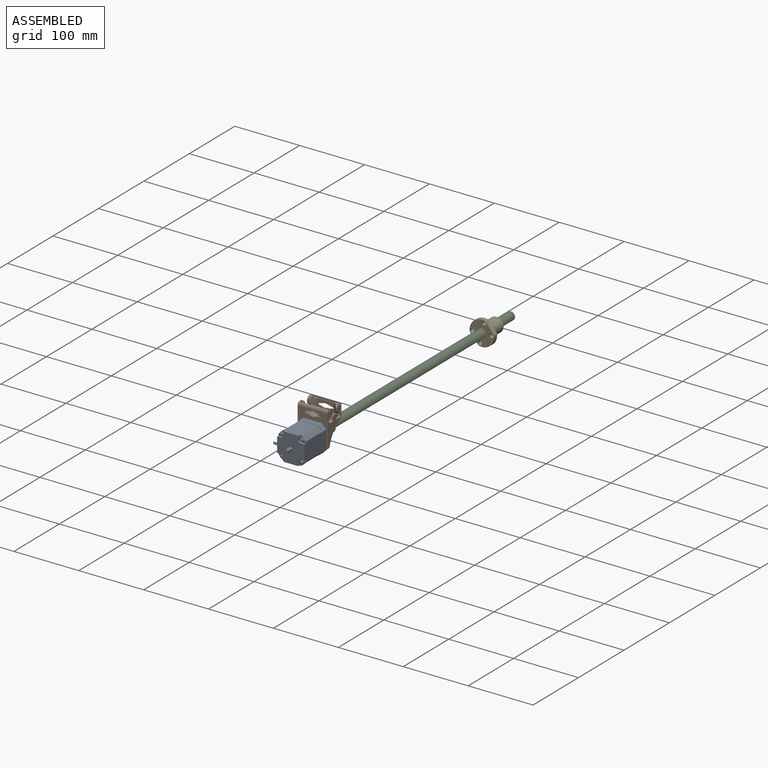
[diagram: assembled view]
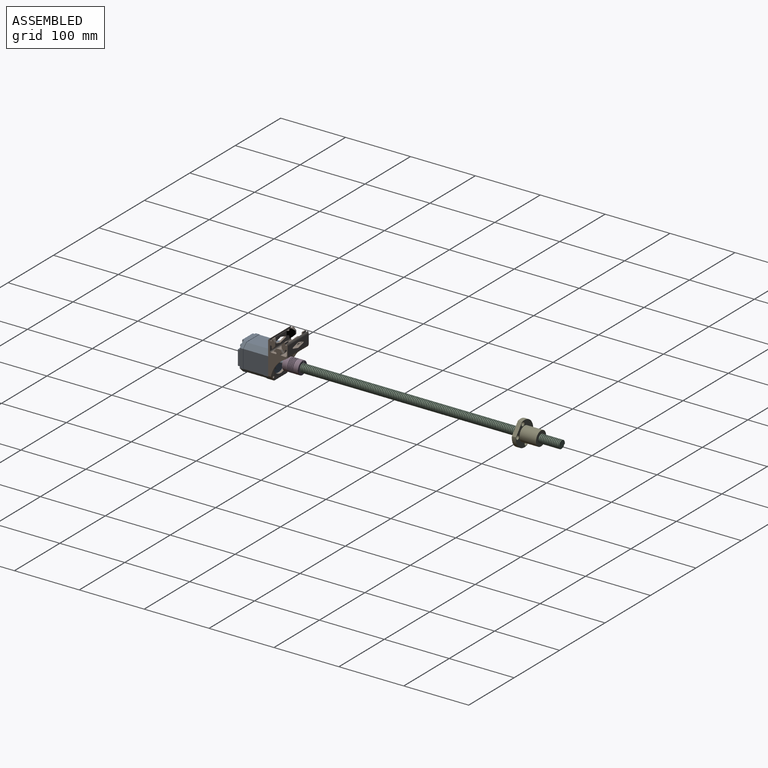
[diagram: assembled view, second angle]
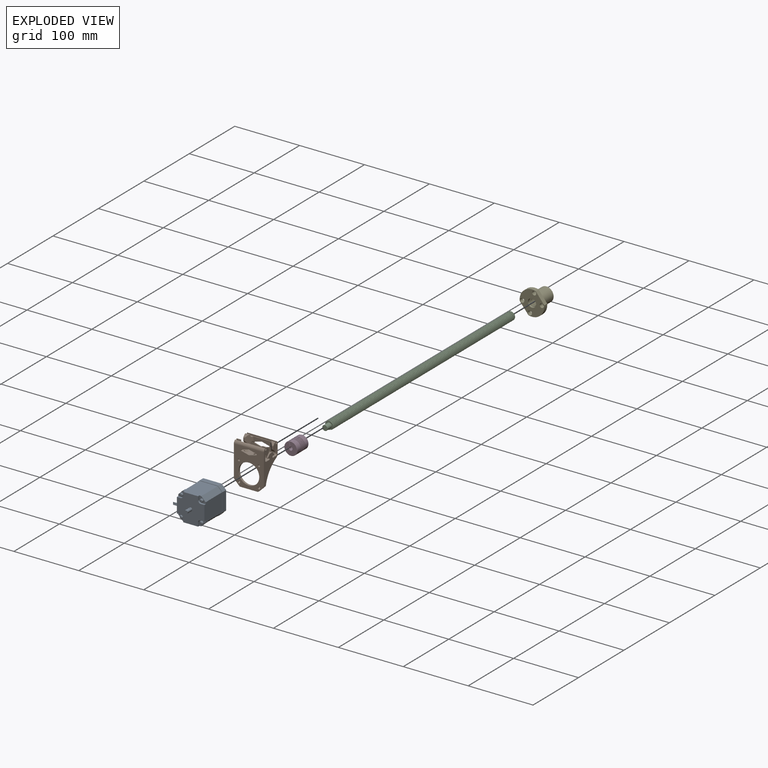
[diagram: exploded view]
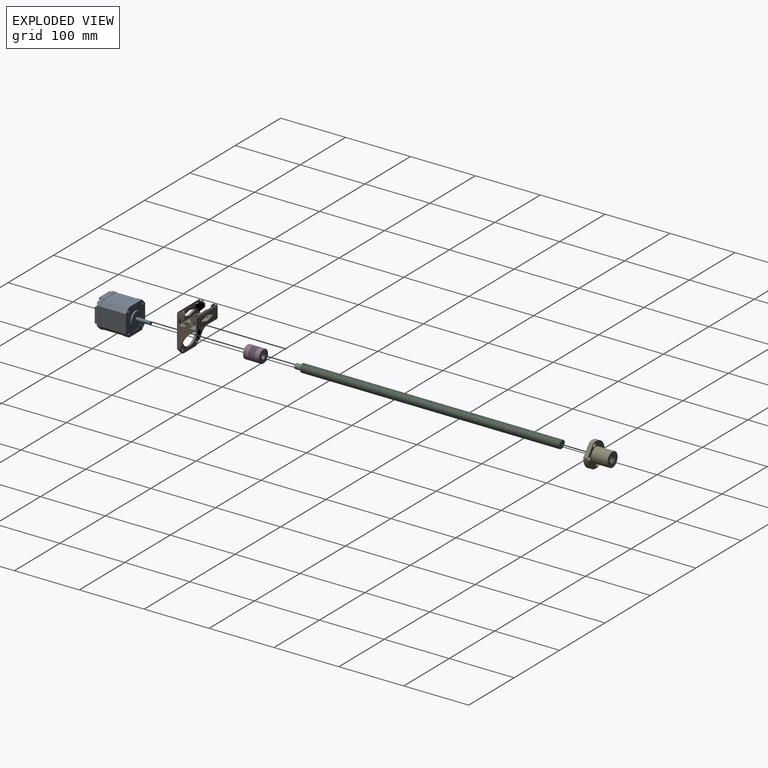
[diagram: exploded view, second angle]
ASSEMBLY  parts=5 mates=4
PART A: 93 faces, bbox 49.3x82x42.3 mm
  f0: plane 42.3x42.3mm, normal (0,1,0), area 858.8mm2, adj f1,f13,f15,f17,f19,f21,f32,f34
  f1: plane 8.25x7mm, normal (0.71,0,0.71), area 81.7mm2, adj f0,f3,f21,f34
  f2: plane 7x7mm, normal (0.71,0,0.71), area 52mm2, adj f12,f22,f23,f35
  f3: plane 42.3x42.3mm, normal (0,-1,0), area 75.6mm2, adj f1,f4,f5,f6,f7,f8,f9,f10
  f4: plane 31.5x6.71mm, normal (0.71,0,0.71), area 298.8mm2, adj f3,f5,f11,f12
  f5: plane 31.5x27.89mm, normal (1,0,0), area 878.4mm2, adj f3,f4,f6,f12
  f6: plane 31.5x6.71mm, normal (0.71,0,-0.71), area 298.8mm2, adj f3,f5,f7,f12
  f7: plane 31.5x27.89mm, normal (0,0,-1), area 878.4mm2, adj f3,f6,f8,f12
  f8: plane 31.5x6.71mm, normal (-0.71,0,-0.71), area 298.8mm2, adj f3,f7,f9,f12
  f9: plane 31.5x27.89mm, normal (-1,0,0), area 878.4mm2, adj f3,f8,f10,f12
  f10: plane 31.5x6.71mm, normal (-0.71,0,0.71), area 298.8mm2, adj f3,f9,f11,f12
  f11: plane 31.5x27.89mm, normal (0,0,1), area 878.4mm2, adj f3,f4,f10,f12
  f12: plane 42.3x42.3mm, normal (0,1,0), area 75.6mm2, adj f2,f4,f5,f6,f7,f8,f9,f10
  f13: plane 28.3x8.25mm, normal (-1,0,0), area 233.5mm2, adj f0,f3,f15,f32
  f14: plane 28.3x8.25mm, normal (-1,0,0), area 207.1mm2, adj f12,f16,f27,f29,f31,f33,f49,f50
  f15: plane 8.25x7mm, normal (-0.71,0,-0.71), area 81.7mm2, adj f0,f3,f13,f17
  f16: plane 7x7mm, normal (-0.71,0,-0.71), area 52mm2, adj f12,f14,f18,f49
  f17: plane 28.3x8.25mm, normal (0,0,-1), area 233.5mm2, adj f0,f3,f15,f19
  f18: plane 28.3x8.25mm, normal (0,0,-1), area 217.6mm2, adj f12,f16,f20,f27,f41,f42,f48,f49
  f19: plane 8.25x7mm, normal (0.71,0,-0.71), area 81.7mm2, adj f0,f3,f17,f21
  f20: plane 7x7mm, normal (0.71,0,-0.71), area 52mm2, adj f12,f18,f22,f41
  f21: plane 28.3x8.25mm, normal (1,0,0), area 233.5mm2, adj f0,f1,f3,f19
  f22: plane 28.3x8.25mm, normal (1,0,0), area 217.6mm2, adj f2,f12,f20,f23,f26,f27,f40,f41
  f23: plane 9.65x9.65mm, normal (0,-1,0), area 46.4mm2, adj f2,f22,f24,f25,f26,f35,f60
  f24: plane 5.65x3mm, normal (1,0,0), area 17mm2, adj f23,f25,f27,f35
  f25: cylinder r=4mm len=4mm, axis (0,1,0), area 18.8mm2, adj f23,f24,f26,f27
  f26: plane 5.65x3mm, normal (0,0,1), area 17mm2, adj f22,f23,f25,f27
  f27: plane 42.3x42.3mm, normal (0,-1,0), area 1410.9mm2, adj f14,f18,f22,f24,f25,f26,f28,f30
  f28: plane 5.65x3mm, normal (-1,0,0), area 17mm2, adj f27,f29,f30,f35
  f29: plane 9.65x9.65mm, normal (0,-1,0), area 46.4mm2, adj f14,f28,f30,f31,f33,f35,f36
  f30: cylinder r=4mm len=4mm, axis (0,-1,0), area 18.8mm2, adj f27,f28,f29,f31
  f31: plane 5.65x3mm, normal (0,0,1), area 17mm2, adj f14,f27,f29,f30
  f32: plane 8.25x7mm, normal (-0.71,0,0.71), area 81.7mm2, adj f0,f3,f13,f34
  f33: plane 7x7mm, normal (-0.71,0,0.71), area 52mm2, adj f12,f14,f29,f35
  f34: plane 28.3x8.25mm, normal (0,0,1), area 233.5mm2, adj f0,f1,f3,f32
  f35: plane 28.3x8.25mm, normal (0,0,1), area 217.6mm2, adj f2,f12,f23,f24,f27,f28,f29,f33
  f36: cylinder r=2.45mm len=4.9mm, axis (0,-1,0), area 15.4mm2, adj f29,f37,f39
  f37: torus R=0.95mm, axis (0,-1,0), area 14.1mm2, adj f36,f38,f39
  f38: plane 1.9x1.9mm, normal (0,-1,0), area 2.8mm2, adj f37,f39
  f39: torus R=0.95mm, axis (0,-1,0), area 14.1mm2, adj f36,f37,f38
  f40: plane 5.65x3mm, normal (0,0,-1), area 17mm2, adj f22,f27,f41,f43
  f41: plane 9.65x9.65mm, normal (0,-1,0), area 46.4mm2, adj f18,f20,f22,f40,f42,f43,f44
  f42: plane 5.65x3mm, normal (1,0,0), area 17mm2, adj f18,f27,f41,f43
  f43: cylinder r=4mm len=4mm, axis (0,-1,0), area 18.8mm2, adj f27,f40,f41,f42
  f44: cylinder r=2.45mm len=4.9mm, axis (0,-1,0), area 15.4mm2, adj f41,f45,f47
  f45: torus R=0.95mm, axis (0,-1,0), area 14.1mm2, adj f44,f46,f47
  f46: plane 1.9x1.9mm, normal (0,-1,0), area 2.8mm2, adj f45,f47
  f47: torus R=0.95mm, axis (0,-1,0), area 14.1mm2, adj f44,f45,f46
  f48: plane 5.65x3mm, normal (-1,0,0), area 17mm2, adj f18,f27,f49,f51
  f49: plane 9.65x9.65mm, normal (0,-1,0), area 46.4mm2, adj f14,f16,f18,f48,f50,f51,f52
  f50: plane 5.65x3mm, normal (0,0,-1), area 17mm2, adj f14,f27,f49,f51
  f51: cylinder r=4mm len=4mm, axis (0,1,0), area 18.8mm2, adj f27,f48,f49,f50
  f52: cylinder r=2.45mm len=4.9mm, axis (0,1,0), area 15.4mm2, adj f49,f53,f55
  f53: torus R=0.95mm, axis (0,1,0), area 14.1mm2, adj f52,f54,f55
  f54: plane 1.9x1.9mm, normal (0,-1,0), area 2.8mm2, adj f53,f55
  f55: torus R=0.95mm, axis (0,1,0), area 14.1mm2, adj f52,f53,f54
  f56: cylinder r=2.5mm len=10mm, axis (0,-1,0), area 131.3mm2, adj f27,f57,f58,f59
  f57: plane 8x3mm, normal (0,0,1), area 24mm2, adj f56,f58,f59
  f58: plane 5x4.5mm, normal (0,-1,0), area 18.6mm2, adj f56,f57
  f59: plane 3x0.5mm, normal (0,-1,0), area 1mm2, adj f56,f57
  f60: cylinder r=2.45mm len=4.9mm, axis (0,1,0), area 15.4mm2, adj f23,f61,f63
  f61: torus R=0.95mm, axis (0,1,0), area 14.1mm2, adj f60,f62,f63
  f62: plane 1.9x1.9mm, normal (0,-1,0), area 2.8mm2, adj f61,f63
  f63: torus R=0.95mm, axis (0,1,0), area 14.1mm2, adj f60,f61,f62
  f64: plane 3x1.75mm, normal (0,0,1), area 5.3mm2, adj f14,f65,f67,f68
  f65: plane 6x3mm, normal (0,-1,0), area 18mm2, adj f14,f64,f66,f68
  f66: plane 3x1.75mm, normal (0,0,-1), area 5.3mm2, adj f14,f65,f67,f68
  f67: plane 6x3mm, normal (0,1,0), area 18mm2, adj f14,f64,f66,f68
  f68: plane 6x1.75mm, normal (-1,0,0), area 7.6mm2, adj f64,f65,f66,f67,f69,f71,f73,f75
  f69: cylinder r=0.48mm len=10mm, axis (-1,0,0), area 30mm2, adj f68,f70
  f70: plane 0.96x0.96mm, normal (-1,0,0), area 0.7mm2, adj f69
  f71: cylinder r=0.48mm len=10mm, axis (-1,0,0), area 30mm2, adj f68,f72
  f72: plane 0.96x0.96mm, normal (-1,0,0), area 0.7mm2, adj f71
  f73: cylinder r=0.48mm len=10mm, axis (-1,0,0), area 30mm2, adj f68,f74
  f74: plane 0.96x0.96mm, normal (-1,0,0), area 0.7mm2, adj f73
  f75: cylinder r=0.48mm len=10mm, axis (-1,0,0), area 30mm2, adj f68,f76
  f76: plane 0.96x0.96mm, normal (-1,0,0), area 0.7mm2, adj f75
  f77: cylinder r=1.5mm len=4.5mm, axis (0,-1,0), area 42.4mm2, adj f0,f78
  f78: plane 3x3mm, normal (0,1,0), area 7.1mm2, adj f77
  f79: cylinder r=1.5mm len=4.5mm, axis (0,1,0), area 42.4mm2, adj f0,f80
  f80: plane 3x3mm, normal (0,1,0), area 7.1mm2, adj f79
  f81: cylinder r=1.5mm len=4.5mm, axis (0,1,0), area 42.4mm2, adj f0,f82
  f82: plane 3x3mm, normal (0,1,0), area 7.1mm2, adj f81
  f83: cylinder r=1.5mm len=4.5mm, axis (0,-1,0), area 42.4mm2, adj f0,f84
  f84: plane 3x3mm, normal (0,1,0), area 7.1mm2, adj f83
  f85: cylinder r=16mm len=32mm, axis (0,1,0), area 40.2mm2, adj f0,f86
  f86: plane 32x32mm, normal (0,1,0), area 424.1mm2, adj f85,f87
  f87: cylinder r=11mm len=22mm, axis (0,1,0), area 165.9mm2, adj f86,f88
  f88: plane 22x22mm, normal (0,1,0), area 360.5mm2, adj f87,f89
  f89: cylinder r=2.5mm len=22mm, axis (0,1,0), area 297.3mm2, adj f88,f90,f91,f92
  f90: plane 3x0.5mm, normal (0,1,0), area 1mm2, adj f89,f91
  f91: plane 15x3mm, normal (0,0,1), area 45mm2, adj f89,f90,f92
  f92: plane 5x4.5mm, normal (0,1,0), area 18.6mm2, adj f89,f91
PART B: 135 faces, bbox 47.1x62.8x30.9 mm
  f0: cylinder r=1.4mm len=11.38mm, axis (1,0,0), area 40.8mm2, adj f41,f57,f59,f110,f115,f127
  f1: cylinder r=1.4mm len=11.38mm, axis (1,0,0), area 40.8mm2, adj f41,f75,f77,f107,f114,f130
  f2: plane 7.5x1.61mm, normal (0,-1,0), area 10.7mm2, adj f41,f83,f84,f114
  f3: plane 7.5x1.61mm, normal (0,-1,0), area 10.7mm2, adj f41,f50,f51,f115
  f4: plane 7.5x2.03mm, normal (0,0,1), area 15.2mm2, adj f38,f43,f49,f111
  f5: plane 5.89x3.16mm, normal (0,-0.71,-0.71), area 19.3mm2, adj f6,f38,f43,f111
  f6: cylinder r=2.75mm len=2.73mm, axis (1,0,0), area 4.2mm2, adj f5,f7,f38,f111
  f7: plane 3.24x2.22mm, normal (0,0,-1), area 7.2mm2, adj f6,f8,f38,f111
  f8: cylinder r=2.75mm len=2.73mm, axis (1,0,0), area 4.2mm2, adj f7,f9,f38,f111
  f9: plane 6.06x3.33mm, normal (0,0.71,-0.71), area 20.7mm2, adj f8,f10,f38,f111
  f10: cylinder r=0.72mm len=7.5mm, axis (1,0,0), area 14.9mm2, adj f9,f11,f38,f111
  f11: plane 7.5x2.14mm, normal (0,0,1), area 16mm2, adj f10,f38,f58,f111
  f12: plane 7.2x2.13mm, normal (0,1,0), area 15.3mm2, adj f13,f38,f62,f112
  f13: cylinder r=0.72mm len=7.2mm, axis (1,0,0), area 14.3mm2, adj f12,f14,f38,f112
  f14: plane 5.76x3.33mm, normal (0,-0.71,0.71), area 19.3mm2, adj f13,f15,f38,f112
  f15: cylinder r=2.75mm len=2.43mm, axis (1,0,0), area 3.6mm2, adj f14,f16,f38,f108,f112
  f16: plane 3.24x2mm, normal (0,-1,0), area 6.5mm2, adj f15,f17,f38,f108
  f17: cylinder r=2.75mm len=3.09mm, axis (1,0,0), area 6.3mm2, adj f16,f18,f38,f108,f112
  f18: plane 5.76x2.67mm, normal (0,-0.71,-0.71), area 16.7mm2, adj f17,f19,f38,f112
  f19: cylinder r=0.72mm len=7.2mm, axis (1,0,0), area 14.3mm2, adj f18,f20,f38,f112
  f20: plane 7.2x2.13mm, normal (0,1,0), area 15.3mm2, adj f19,f21,f38,f112
  f21: cylinder r=1.4mm len=10mm, axis (1,0,0), area 37.8mm2, adj f20,f38,f73,f112
  f22: plane 7.5x2.13mm, normal (0,0,-1), area 16mm2, adj f23,f38,f76,f113
  f23: cylinder r=0.72mm len=7.5mm, axis (1,0,0), area 14.9mm2, adj f22,f24,f38,f113
  f24: plane 6.06x3.33mm, normal (0,0.71,0.71), area 20.7mm2, adj f23,f25,f38,f113
  f25: cylinder r=2.75mm len=2.73mm, axis (1,0,0), area 4.2mm2, adj f24,f26,f38,f113
  f26: plane 3.24x2.22mm, normal (0,0,1), area 7.2mm2, adj f25,f27,f38,f113
  f27: cylinder r=2.75mm len=2.73mm, axis (1,0,0), area 4.2mm2, adj f26,f28,f38,f113
  f28: plane 5.89x3.16mm, normal (0,-0.71,0.71), area 19.3mm2, adj f27,f38,f42,f113
  f29: plane 7.5x2.03mm, normal (0,0,-1), area 15.2mm2, adj f38,f42,f85,f113
  f30: cylinder r=1.7mm len=3.4mm, axis (0,0,-1), area 33.9mm2, adj f40,f46
  f31: cylinder r=1.7mm len=3.4mm, axis (0,0,-1), area 33.9mm2, adj f40,f46
  f32: cylinder r=1.7mm len=3.4mm, axis (0,0,-1), area 33.9mm2, adj f34,f46
  f33: cylinder r=1.7mm len=3.4mm, axis (0,0,-1), area 33.9mm2, adj f37,f46
  f34: plane 13.35x12.54mm, normal (0,0,1), area 46.3mm2, adj f32,f35,f45,f98,f103
  f35: cylinder r=6mm len=28.38mm, axis (0,1,0), area 205.2mm2, adj f34,f40,f45,f87,f90,f99,f103,f105
  f36: cylinder r=6mm len=1.74mm, axis (0,-1,0), area 1.1mm2, adj f40,f89,f106,f133
  f37: plane 13.35x12.54mm, normal (0,0,1), area 46.3mm2, adj f33,f45,f91,f96,f104
  f38: plane 53x30.18mm, normal (1,0,0), area 754.6mm2, adj f4,f5,f6,f7,f8,f9,f10,f11
  f39: plane 30.3x21.02mm, normal (0,1,0), area 601.9mm2, adj f92,f94,f96,f97,f98,f100,f117
  f40: plane 37x16mm, normal (0,0,1), area 257.9mm2, adj f30,f31,f35,f36,f44,f45,f91,f93
  f41: plane 53x30.18mm, normal (-1,0,0), area 754.6mm2, adj f0,f1,f2,f3,f46,f47,f48,f49
  f42: plane 7.5x1.61mm, normal (0,-1,0), area 10.7mm2, adj f28,f29,f38,f113
  f43: plane 7.5x1.61mm, normal (0,-1,0), area 10.7mm2, adj f4,f5,f38,f111
  f44: plane 28.3x3.18mm, normal (0,1,0), area 89.9mm2, adj f40,f46,f133,f134
  f45: cylinder r=16mm len=32mm, axis (0,0,-1), area 319.2mm2, adj f34,f35,f37,f40,f46,f91,f97
  f46: plane 57.47x46.3mm, normal (0,0,-1), area 1624.3mm2, adj f30,f31,f32,f33,f38,f41,f44,f45
  f47: plane 46.3x14.48mm, normal (0,0,1), area 555.3mm2, adj f38,f41,f100,f101,f118,f119,f120,f121
  f48: plane 46.3x2.03mm, normal (0,0,-1), area 93.8mm2, adj f38,f41,f49,f101
  f49: cylinder r=1.4mm len=46.3mm, axis (1,0,0), area 103.6mm2, adj f4,f38,f41,f48,f50,f110,f111,f115
  f50: plane 7.5x2.03mm, normal (0,0,1), area 15.2mm2, adj f3,f41,f49,f115
  f51: plane 5.89x3.16mm, normal (0,-0.71,-0.71), area 19.3mm2, adj f3,f41,f52,f115
  f52: cylinder r=2.75mm len=2.73mm, axis (1,0,0), area 4.2mm2, adj f41,f51,f53,f115
  f53: plane 3.24x2.22mm, normal (0,0,-1), area 7.2mm2, adj f41,f52,f54,f115
  f54: cylinder r=2.75mm len=2.73mm, axis (1,0,0), area 4.2mm2, adj f41,f53,f55,f115
  f55: plane 6.06x3.33mm, normal (0,0.71,-0.71), area 20.7mm2, adj f41,f54,f56,f115
  f56: cylinder r=0.72mm len=7.5mm, axis (1,0,0), area 14.9mm2, adj f41,f55,f57,f115
  f57: plane 7.5x2.14mm, normal (0,0,1), area 16mm2, adj f0,f41,f56,f115
  f58: cylinder r=1.4mm len=11.38mm, axis (1,0,0), area 40.8mm2, adj f11,f38,f59,f110,f111,f128
  f59: plane 46.3x6.22mm, normal (0,0,-1), area 233.1mm2, adj f0,f38,f41,f58,f60,f120,f121,f126
  f60: cylinder r=2.4mm len=46.3mm, axis (1,0,0), area 177.1mm2, adj f38,f41,f59,f61
  f61: plane 46.3x6.22mm, normal (0,-1,0), area 288.1mm2, adj f38,f41,f60,f62
  f62: cylinder r=1.4mm len=46.3mm, axis (1,0,0), area 77.7mm2, adj f12,f38,f41,f61,f63,f73,f112,f116
  f63: plane 7.2x2.13mm, normal (0,1,0), area 15.3mm2, adj f41,f62,f64,f116
  f64: cylinder r=0.72mm len=7.2mm, axis (1,0,0), area 14.3mm2, adj f41,f63,f65,f116
  f65: plane 5.76x3.33mm, normal (0,-0.71,0.71), area 19.3mm2, adj f41,f64,f66,f116
  f66: cylinder r=2.75mm len=2.43mm, axis (1,0,0), area 3.6mm2, adj f41,f65,f67,f109,f116
  f67: plane 3.24x2mm, normal (0,-1,0), area 6.5mm2, adj f41,f66,f68,f109
  f68: cylinder r=2.75mm len=3.09mm, axis (1,0,0), area 6.3mm2, adj f41,f67,f69,f109,f116
  f69: plane 5.76x2.67mm, normal (0,-0.71,-0.71), area 16.7mm2, adj f41,f68,f70,f116
  f70: cylinder r=0.72mm len=7.2mm, axis (1,0,0), area 14.3mm2, adj f41,f69,f71,f116
  f71: plane 7.2x2.13mm, normal (0,1,0), area 15.3mm2, adj f41,f70,f72,f116
  f72: cylinder r=1.4mm len=10mm, axis (1,0,0), area 37.8mm2, adj f41,f71,f73,f116
  f73: plane 46.3x14.87mm, normal (0,-1,0), area 483.8mm2, adj f21,f38,f41,f62,f72,f74,f112,f116
  f74: cylinder r=2.4mm len=46.3mm, axis (1,0,0), area 177.1mm2, adj f38,f41,f73,f75
  f75: plane 46.3x6.22mm, normal (0,0,1), area 233.1mm2, adj f1,f38,f41,f74,f76,f122,f123,f130
  f76: cylinder r=1.4mm len=11.38mm, axis (1,0,0), area 40.8mm2, adj f22,f38,f75,f107,f113,f132
  f77: plane 7.5x2.13mm, normal (0,0,-1), area 16mm2, adj f1,f41,f78,f114
  f78: cylinder r=0.72mm len=7.5mm, axis (1,0,0), area 14.9mm2, adj f41,f77,f79,f114
  f79: plane 6.06x3.33mm, normal (0,0.71,0.71), area 20.7mm2, adj f41,f78,f80,f114
  f80: cylinder r=2.75mm len=2.73mm, axis (1,0,0), area 4.2mm2, adj f41,f79,f81,f114
  f81: plane 3.24x2.22mm, normal (0,0,1), area 7.2mm2, adj f41,f80,f82,f114
  f82: cylinder r=2.75mm len=2.73mm, axis (1,0,0), area 4.2mm2, adj f41,f81,f83,f114
  f83: plane 5.89x3.16mm, normal (0,-0.71,0.71), area 19.3mm2, adj f2,f41,f82,f114
  f84: plane 7.5x2.03mm, normal (0,0,-1), area 15.2mm2, adj f2,f41,f85,f114
  f85: cylinder r=1.4mm len=46.3mm, axis (1,0,0), area 103.6mm2, adj f29,f38,f41,f84,f86,f107,f113,f114
  f86: plane 46.3x2.03mm, normal (0,0,1), area 93.8mm2, adj f38,f41,f85,f102
  f87: plane 12.79x11.02mm, normal (1,0,0), area 61.5mm2, adj f35,f90,f94
  f88: plane 12.79x11.02mm, normal (-1,0,0), area 61.5mm2, adj f89,f91,f92
  f89: cylinder r=45mm len=38.01mm, axis (1,0,0), area 113.1mm2, adj f36,f38,f88,f91,f92,f100,f106,f133
  f90: cylinder r=45mm len=38.01mm, axis (1,0,0), area 113.1mm2, adj f35,f41,f87,f93,f94,f100,f105,f134
  f91: cylinder r=6mm len=28.38mm, axis (0,-1,0), area 205.2mm2, adj f37,f40,f45,f88,f89,f95,f104,f106
  f92: cylinder r=6mm len=20.88mm, axis (0,0,-1), area 160.6mm2, adj f39,f88,f89,f95,f100
  f93: cylinder r=6mm len=1.74mm, axis (0,1,0), area 1.1mm2, adj f40,f90,f105,f134
  f94: cylinder r=6mm len=20.88mm, axis (0,0,1), area 160.6mm2, adj f39,f87,f90,f99,f100
  f95: bspline ~7.42x6mm, area 34.4mm2, adj f91,f92,f96,f104
  f96: cylinder r=5mm len=9.19mm, axis (-1,0,0), area 67mm2, adj f37,f39,f95,f97,f104
  f97: bspline ~14.98x5.95mm, area 84.3mm2, adj f39,f45,f96,f98
  f98: cylinder r=5mm len=9.19mm, axis (-1,0,0), area 67mm2, adj f34,f39,f97,f99,f103
  f99: bspline ~6.36x6mm, area 40.4mm2, adj f35,f94,f98,f103
  f100: cylinder r=5mm len=46.3mm, axis (1,0,0), area 183.2mm2, adj f38,f39,f41,f47,f89,f90,f92,f94
  f101: cylinder r=5mm len=46.3mm, axis (-1,0,0), area 171.1mm2, adj f38,f41,f47,f48
  f102: cylinder r=5mm len=46.3mm, axis (-1,0,0), area 262.3mm2, adj f38,f41,f46,f86
  f103: cylinder r=3mm len=6mm, axis (0,0,1), area 13.3mm2, adj f34,f35,f98,f99
  f104: cylinder r=3mm len=6mm, axis (0,0,1), area 13.3mm2, adj f37,f91,f95,f96
  f105: cylinder r=3mm len=6mm, axis (0,0,1), area 3.3mm2, adj f35,f40,f90,f93
  f106: cylinder r=3mm len=6mm, axis (0,0,1), area 3.3mm2, adj f36,f40,f89,f91
  f107: plane 26.3x6.97mm, normal (0,0,1), area 143.8mm2, adj f1,f76,f85,f113,f114,f124,f125,f130
  f108: plane 4.5x0.07mm, normal (-1,0,0), area 0.3mm2, adj f15,f16,f17,f112
  f109: plane 4.5x0.07mm, normal (1,0,0), area 0.3mm2, adj f66,f67,f68,f116
  f110: plane 26.3x6.97mm, normal (0,0,-1), area 143.8mm2, adj f0,f49,f58,f111,f115,f118,f119,f127
  f111: plane 14.33x8.54mm, normal (-0.71,0,-0.71), area 99.5mm2, adj f4,f5,f6,f7,f8,f9,f10,f11
  f112: plane 15.01x8.62mm, normal (-0.71,-0.71,0), area 103.6mm2, adj f12,f13,f14,f15,f17,f18,f19,f20
  f113: plane 14.33x8.54mm, normal (-0.71,0,0.71), area 99.5mm2, adj f22,f23,f24,f25,f26,f27,f28,f29
  f114: plane 14.33x8.54mm, normal (0.71,0,0.71), area 99.5mm2, adj f1,f2,f77,f78,f79,f80,f81,f82
  f115: plane 14.33x8.54mm, normal (0.71,0,-0.71), area 99.5mm2, adj f0,f3,f49,f50,f51,f52,f53,f54
  f116: plane 15.01x8.62mm, normal (0.71,-0.71,0), area 103.6mm2, adj f62,f63,f64,f65,f66,f68,f69,f70
  f117: cylinder r=3.17mm len=6.35mm, axis (0,1,0), area 32.6mm2, adj f39,f73
  f118: plane 11.12x2.97mm, normal (-0.26,0.97,0), area 18.4mm2, adj f47,f110,f128,f129
  f119: plane 11.12x2.97mm, normal (0.26,0.97,0), area 18.4mm2, adj f47,f110,f127,f129
  f120: plane 11.12x2.97mm, normal (-0.26,-0.97,0), area 15mm2, adj f47,f59,f126,f128
  f121: plane 11.12x2.97mm, normal (0.26,-0.97,0), area 15mm2, adj f47,f59,f126,f127
  f122: plane 11.38x3.03mm, normal (0.26,-0.97,0), area 33.9mm2, adj f46,f75,f123,f130
  f123: plane 11.38x3.03mm, normal (-0.26,-0.97,0), area 33.9mm2, adj f46,f75,f122,f132
  f124: plane 11.12x3.18mm, normal (0.26,0.97,0), area 36.5mm2, adj f46,f107,f130,f131
  f125: plane 11.12x3.18mm, normal (-0.26,0.97,0), area 36.5mm2, adj f46,f107,f131,f132
  f126: cylinder r=1mm len=1.31mm, axis (0,0,-1), area 0.7mm2, adj f47,f59,f120,f121
  f127: cylinder r=1mm len=1.93mm, axis (0,0,-1), area 3.7mm2, adj f0,f47,f59,f110,f119,f121
  f128: cylinder r=1mm len=1.93mm, axis (0,0,-1), area 3.7mm2, adj f47,f58,f59,f110,f118,f120
  f129: cylinder r=1mm len=1.6mm, axis (0,0,-1), area 0.8mm2, adj f47,f110,f118,f119
  f130: cylinder r=1mm len=3.18mm, axis (0,0,-1), area 7.8mm2, adj f1,f46,f75,f107,f122,f124
  f131: cylinder r=1mm len=3.18mm, axis (0,0,-1), area 1.7mm2, adj f46,f107,f124,f125
  f132: cylinder r=1mm len=3.18mm, axis (0,0,-1), area 7.8mm2, adj f46,f75,f76,f107,f123,f125
  f133: plane 9.04x9.04mm, normal (0.71,0.71,0), area 44.5mm2, adj f36,f38,f40,f44,f46,f89
  f134: plane 9.04x9.04mm, normal (-0.71,0.71,0), area 44.5mm2, adj f40,f41,f44,f46,f90,f93
PART C: 10 faces, bbox 12.7x14.7x410 mm
  f0: cylinder r=6.35mm len=400.05mm, axis (0,0,-1), area -4638.8mm2, adj f1,f2,f5,f7,f8,f9
  f1: plane 12.7x12.28mm, normal (0,0,-1), area 64.9mm2, adj f0,f3,f5,f6,f7
  f2: plane 12.7x12.29mm, normal (0,0,1), area 115.2mm2, adj f0,f6,f8,f9
  f3: cylinder r=4mm len=9.53mm, axis (0,0,1), area 239.4mm2, adj f1,f4
  f4: plane 8x8mm, normal (0,0,-1), area 50.3mm2, adj f3
  f5: plane 1.27x0.8mm, normal (0,-1,0), area 0.8mm2, adj f0,f1,f6,f9
  f6: cylinder r=5.08mm len=400.05mm, axis (0,0,1), area 12611.1mm2, adj f1,f2,f5,f7,f8,f9
  f7: bspline ~399.96x14.66mm, area 7450.8mm2, adj f0,f1,f6,f8
  f8: plane 1.27x0.8mm, normal (0,-1,0), area 0.8mm2, adj f0,f2,f6,f7
  f9: bspline ~399.96x14.66mm, area 7483.9mm2, adj f0,f2,f5,f6
PART D: 32 faces, bbox 24.4x23.3x26.3 mm
  f0: cone r=4mm half-angle=45deg, axis (0,0,-1), area 10.7mm2, adj f1,f2,f3,f4
  f1: plane 9.63x7.31mm, normal (0,-1,0), area 42.2mm2, adj f0,f2,f4,f5,f6,f7,f8
  f2: plane 19.4x19.39mm, normal (0,0,-1), area 232.6mm2, adj f0,f1,f3,f5
  f3: plane 9.58x7.31mm, normal (0,1,0), area 41.9mm2, adj f0,f2,f4,f5,f6,f9,f10
  f4: cylinder r=4mm len=12.2mm, axis (0,0,-1), area 244.1mm2, adj f0,f1,f3,f7,f8,f9,f10,f11
  f5: cone r=10mm half-angle=45deg, axis (0,0,1), area 25.9mm2, adj f1,f2,f3,f6
  f6: cylinder r=10mm len=24.4mm, axis (0,0,1), area 1299.1mm2, adj f1,f3,f5,f7,f10,f11,f12,f14
  f7: bspline ~23.13x22mm, area 1185.7mm2, adj f1,f4,f6,f13,f18,f19
  f8: cylinder r=1.7mm len=5.75mm, axis (0,1,0), area 57.2mm2, adj f1,f4,f20
  f9: cylinder r=1.7mm len=8.99mm, axis (0,1,0), area 82.2mm2, adj f3,f4,f21
  f10: bspline ~23.13x22mm, area 195mm2, adj f3,f4,f6,f11
  f11: plane 6x0.7mm, normal (-1,0,0), area 4.2mm2, adj f4,f6,f10,f12
  f12: bspline ~23.13x22mm, area 1319.3mm2, adj f4,f6,f11,f13,f14,f19
  f13: plane 8x7.24mm, normal (0,0,-1), area 19.9mm2, adj f4,f7,f12,f19
  f14: plane 8.92x8.39mm, normal (0,1,0), area 51.3mm2, adj f6,f12,f15,f19,f22,f23,f24
  f15: cone r=9.7mm half-angle=45deg, axis (0,0,-1), area 25.9mm2, adj f6,f14,f16,f23
  f16: plane 8.85x8.39mm, normal (0,-1,0), area 50.9mm2, adj f6,f15,f17,f19,f22,f23,f25
  f17: bspline ~14.4x11.57mm, area 69.1mm2, adj f6,f16,f18,f19
  f18: plane 7.5x0.7mm, normal (1,0,0), area 5.2mm2, adj f6,f7,f17,f19
  f19: cylinder r=2.5mm len=12.2mm, axis (0,0,1), area 159.1mm2, adj f7,f12,f13,f14,f16,f17,f18,f22
  f20: plane 6x5.85mm, normal (0,1,0), area 19mm2, adj f8,f26,f27
  f21: cylinder r=10mm len=3.4mm, axis (0,0,1), area 10.5mm2, adj f9
  f22: cone r=2.5mm half-angle=45deg, axis (0,0,1), area 6.7mm2, adj f14,f16,f19,f23
  f23: plane 19.4x19.39mm, normal (0,0,1), area 264.7mm2, adj f14,f15,f16,f22
  f24: cylinder r=1.7mm len=8.21mm, axis (0,1,0), area 83.7mm2, adj f14,f28
  f25: cylinder r=1.7mm len=5.75mm, axis (0,1,0), area 61.4mm2, adj f16,f29
  f26: cylinder r=10mm len=6mm, axis (0,0,1), area 30.3mm2, adj f20,f27
  f27: cylinder r=3mm len=6mm, axis (0,1,0), area 32.4mm2, adj f20,f26
  f28: cylinder r=10mm len=3.4mm, axis (0,0,1), area 10.5mm2, adj f24
  f29: plane 6x5.85mm, normal (0,1,0), area 19mm2, adj f25,f30,f31
  f30: cylinder r=10mm len=6mm, axis (0,0,1), area 30.3mm2, adj f29,f31
  f31: cylinder r=3mm len=6mm, axis (0,1,0), area 32.4mm2, adj f29,f30
PART E: 29 faces, bbox 38.4x32.1x32.8 mm
  f0: bspline ~31.23x14.66mm, area 563.7mm2, adj f2,f14,f15,f16,f17,f18,f19,f20
  f1: bspline ~30.39x14.66mm, area 539.1mm2, adj f2,f14,f15,f16,f17,f18,f19,f20
  f2: cylinder r=5.08mm len=30.15mm, axis (0,0,-1), area 304.8mm2, adj f0,f1,f14,f28
  f3: cylinder r=19.05mm len=31.75mm, axis (0,0,-1), area 238.3mm2, adj f4,f10,f11,f12
  f4: plane 21.06x6.35mm, normal (0,1,0), area 133.7mm2, adj f3,f5,f11,f12
  f5: cylinder r=19.05mm len=31.75mm, axis (0,0,-1), area 238.3mm2, adj f4,f10,f11,f12
  f6: cylinder r=3.17mm len=6.35mm, axis (0,0,-1), area 126.7mm2, adj f11,f12
  f7: cylinder r=3.17mm len=6.35mm, axis (0,0,-1), area 126.7mm2, adj f11,f12
  f8: cylinder r=3.17mm len=6.35mm, axis (0,0,-1), area 126.7mm2, adj f11,f12
  f9: cylinder r=3.17mm len=6.35mm, axis (0,0,-1), area 126.7mm2, adj f11,f12
  f10: plane 21.06x6.35mm, normal (0,-1,0), area 133.7mm2, adj f3,f5,f11,f12
  f11: plane 38.1x31.75mm, normal (0,0,1), area 534.7mm2, adj f3,f4,f5,f6,f7,f8,f9,f10
  f12: plane 38.1x31.75mm, normal (0,0,-1), area 796mm2, adj f3,f4,f5,f6,f7,f8,f9,f10
  f13: cylinder r=11.11mm len=25.4mm, axis (0,0,-1), area 1773.5mm2, adj f11,f14
  f14: plane 22.54x22.54mm, normal (0,0,1), area 284.3mm2, adj f0,f1,f2,f13,f27
  f15: cylinder r=6.35mm len=12.7mm, axis (0,0,1), area 37.7mm2, adj f0,f1,f16,f27
  f16: cylinder r=6.35mm len=12.7mm, axis (0,0,1), area 37.6mm2, adj f0,f1,f15,f17
  f17: cylinder r=6.35mm len=12.7mm, axis (0,0,1), area 37.6mm2, adj f0,f1,f16,f18
  f18: cylinder r=6.35mm len=12.7mm, axis (0,0,1), area 37.7mm2, adj f0,f1,f17,f19
  f19: cylinder r=6.35mm len=12.7mm, axis (0,0,1), area 37.6mm2, adj f0,f1,f18,f20
  f20: cylinder r=6.35mm len=12.7mm, axis (0,0,1), area 37.7mm2, adj f0,f1,f19,f21
  f21: cylinder r=6.35mm len=12.7mm, axis (0,0,1), area 37.7mm2, adj f0,f1,f20,f22
  f22: cylinder r=6.35mm len=12.7mm, axis (0,0,1), area 37.6mm2, adj f0,f1,f21,f23
  f23: cylinder r=6.35mm len=12.7mm, axis (0,0,1), area 37.7mm2, adj f0,f1,f22,f24
  f24: cylinder r=6.35mm len=12.7mm, axis (0,0,1), area 37.7mm2, adj f0,f1,f23,f25
  f25: cylinder r=6.35mm len=12.7mm, axis (0,0,1), area 37.6mm2, adj f0,f1,f24,f26
  f26: cylinder r=6.35mm len=12.7mm, axis (0,0,1), area 101.4mm2, adj f0,f12,f25,f28
  f27: cylinder r=6.35mm len=10.78mm, axis (0,0,1), area 7mm2, adj f1,f14,f15
  f28: plane 1.6x1.27mm, normal (0,-1,0), area 1.6mm2, adj f0,f1,f2,f26
PLACE A t=(45.85,-450.85,25.85)mm fixed
PLACE B rot(axis=(-1,0,0),90deg) t=(45.85,-450.85,25.85)mm
PLACE C rot(axis=(-0.1,0.7,0.7),168.4deg) t=(45.81,-414.33,25.99)mm
PLACE D rot(axis=(0.47,-0.63,0.63),129.9deg) t=(45.81,-438.85,25.99)mm
PLACE E rot(axis=(-0.32,-0.67,-0.67),144.7deg) t=(45.81,-78.25,25.99)mm
MATE revolute D.f23 <-> A.f56  axis (0,-1,0) through (45.85,-438.85,25.85)mm
MATE fastened D.f0 <-> C.f3  axis (0,1,0) through (45.81,-413.85,25.99)mm
MATE cylindrical E.f2 <-> C.f0  axis (0,-1,0) through (45.81,-78.25,25.99)mm
MATE fastened B.f45 <-> A.f56  axis (0,-1,0) through (45.85,-450.85,25.85)mm
